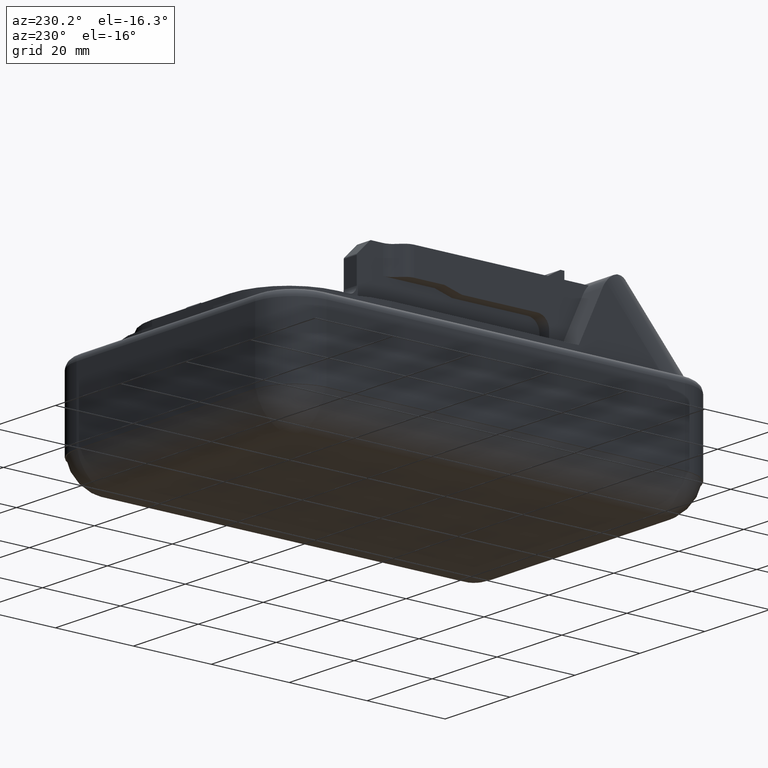
[diagram: clean part render]
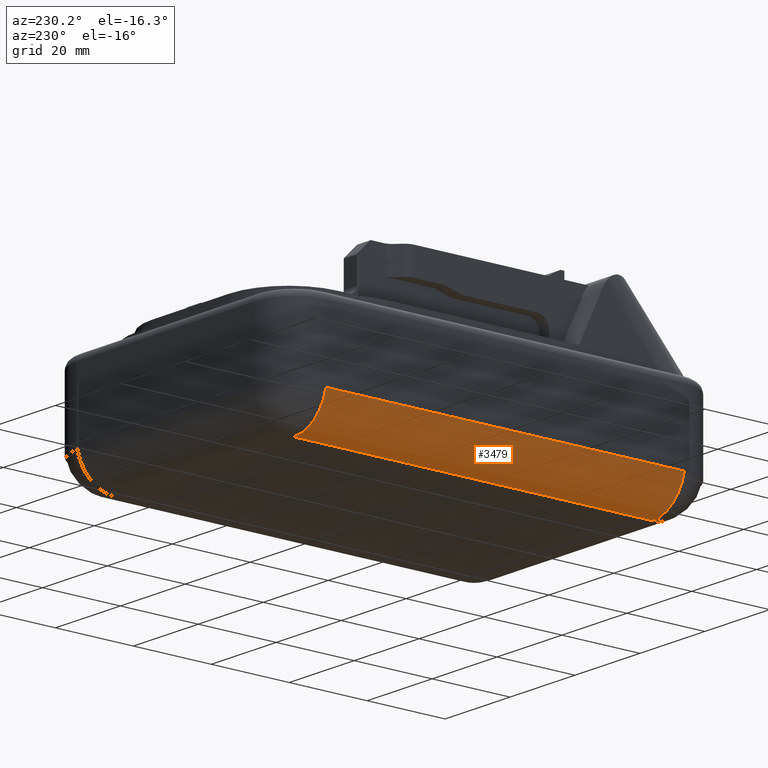
[diagram: same view with one face highlighted and labeled with its STEP entity id]
A machine part, auxiliary view. The second image highlights one B-rep face of the part: STEP entity #3479.
In plain terms, the highlighted cylindrical surface (partial cylindrical patch) has radius 10 mm, axis along (0, -1, 0).
Its self-contained STEP definition (entity closure, byte-faithful):
#175=LINE('',#5047,#579);
#176=LINE('',#5050,#580);
#579=VECTOR('',#4022,10.);
#580=VECTOR('',#4025,1.);
#981=CYLINDRICAL_SURFACE('',#3692,10.);
#1036=FACE_OUTER_BOUND('',#1228,.T.);
#1228=EDGE_LOOP('',(#2427,#2428,#2429,#2430));
#1431=CIRCLE('',#3693,10.);
#1432=CIRCLE('',#3694,10.);
#1544=VERTEX_POINT('',#5041);
#1545=VERTEX_POINT('',#5045);
#1546=VERTEX_POINT('',#5046);
#1547=VERTEX_POINT('',#5048);
#1895=EDGE_CURVE('',#1545,#1546,#175,.T.);
#1896=EDGE_CURVE('',#1545,#1547,#1431,.T.);
#1897=EDGE_CURVE('',#1547,#1544,#176,.T.);
#1898=EDGE_CURVE('',#1546,#1544,#1432,.T.);
#2427=ORIENTED_EDGE('',*,*,#1895,.F.);
#2428=ORIENTED_EDGE('',*,*,#1896,.T.);
#2429=ORIENTED_EDGE('',*,*,#1897,.T.);
#2430=ORIENTED_EDGE('',*,*,#1898,.F.);
#3479=ADVANCED_FACE('',(#1036),#981,.T.);
#3692=AXIS2_PLACEMENT_3D('',#5044,#4020,#4021);
#3693=AXIS2_PLACEMENT_3D('',#5049,#4023,#4024);
#3694=AXIS2_PLACEMENT_3D('',#5051,#4026,#4027);
#4020=DIRECTION('center_axis',(0.,-1.,0.));
#4021=DIRECTION('ref_axis',(-1.,0.,1.83697019872E-16));
#4022=DIRECTION('',(0.,-1.,0.));
#4023=DIRECTION('center_axis',(0.,-1.,0.));
#4024=DIRECTION('ref_axis',(0.,0.,1.));
#4025=DIRECTION('',(0.,-1.,0.));
#4026=DIRECTION('center_axis',(0.,-1.,0.));
#4027=DIRECTION('ref_axis',(0.,0.,1.));
#5041=CARTESIAN_POINT('',(-27.5,113.,0.));
#5044=CARTESIAN_POINT('Origin',(-27.5,159.,10.));
#5045=CARTESIAN_POINT('',(-37.2979589711327,205.,8.));
#5046=CARTESIAN_POINT('',(-37.2979589711327,113.,8.));
#5047=CARTESIAN_POINT('',(-37.2979589711327,159.,8.));
#5048=CARTESIAN_POINT('',(-27.5,205.,0.));
#5049=CARTESIAN_POINT('Origin',(-27.5,205.,10.));
#5050=CARTESIAN_POINT('',(-27.5,159.,0.));
#5051=CARTESIAN_POINT('Origin',(-27.5,113.,10.));